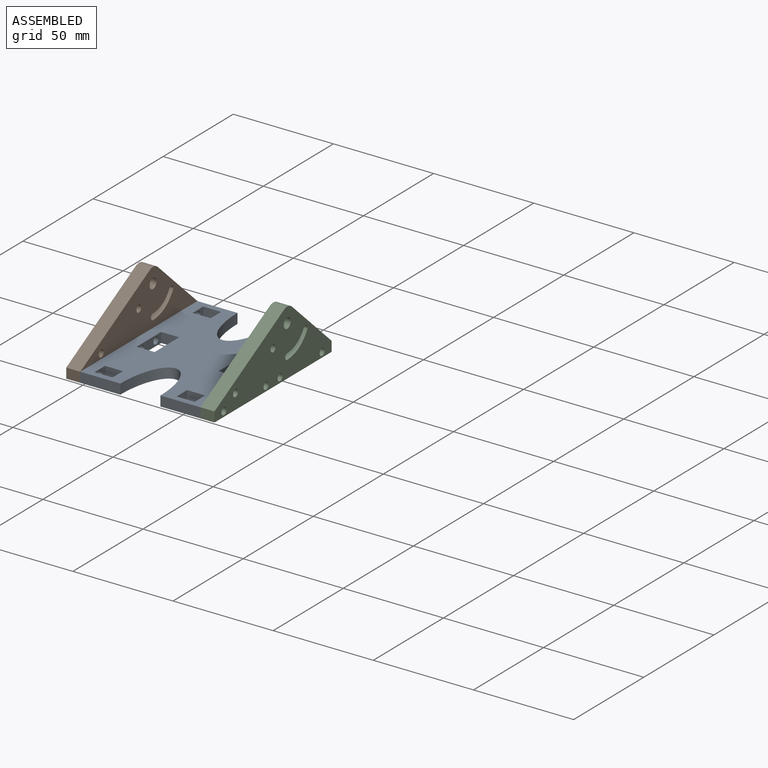
[diagram: assembled view]
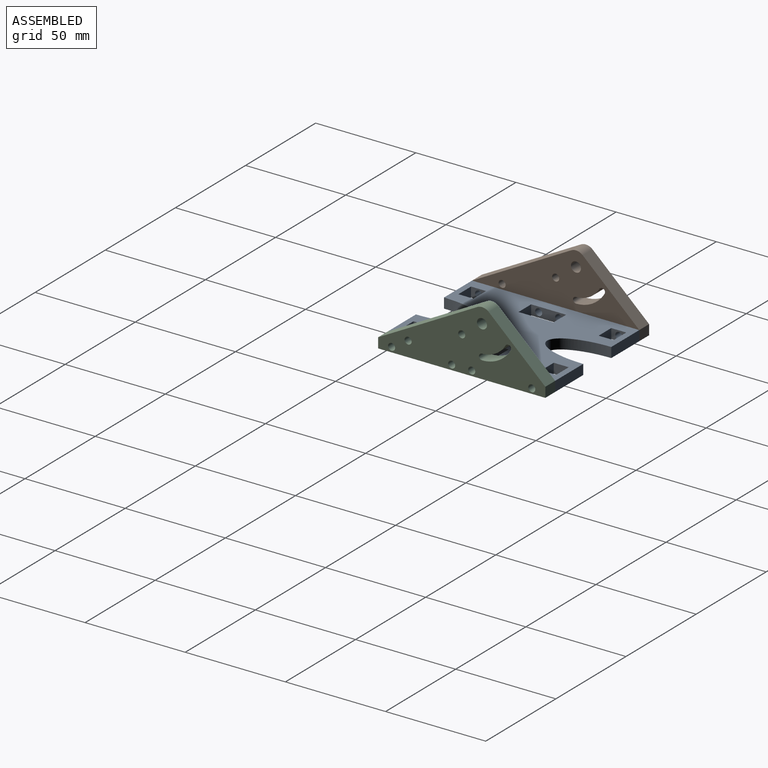
[diagram: assembled view, second angle]
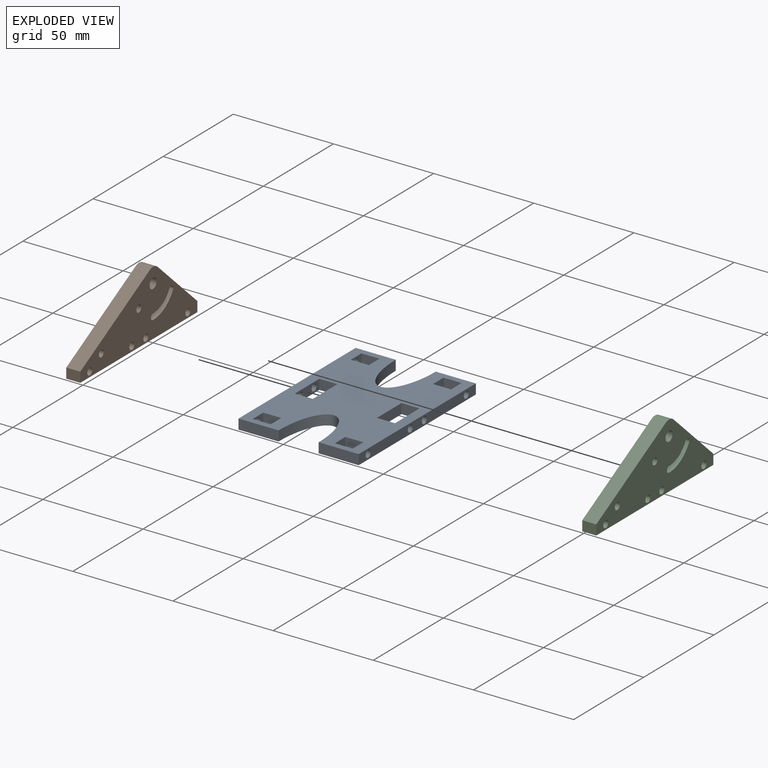
[diagram: exploded view]
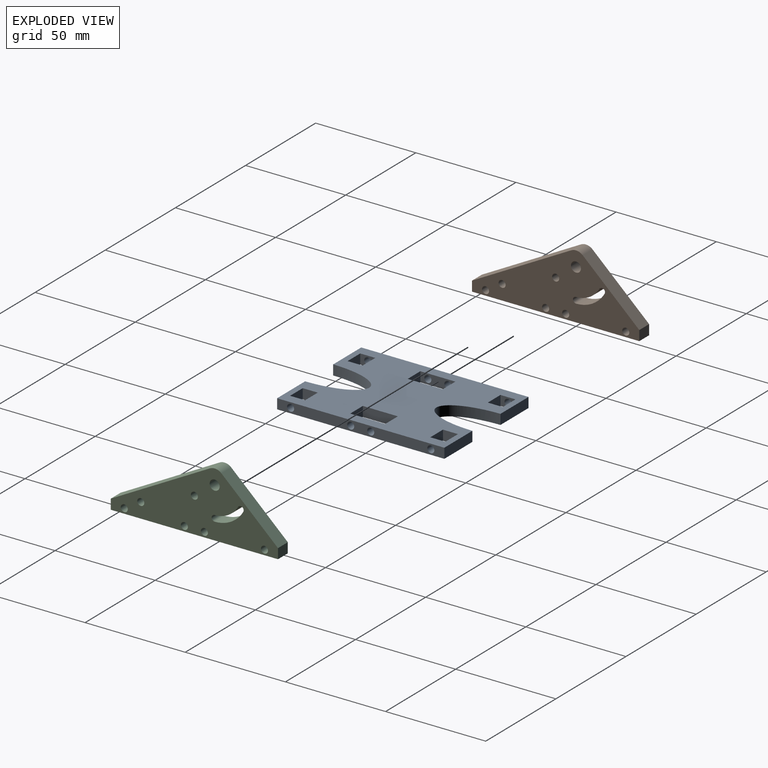
[diagram: exploded view, second angle]
FCSTD DOCUMENT  (FreeCAD 1.0RUnknown)
Label: Wedge-3
License: All rights reserved
LicenseURL: https://en.wikipedia.org/wiki/All_rights_reserved
objects: Sketcher::SketchObject×9, App::Part×6, PartDesign::Body×5, PartDesign::Pad×4, PartDesign::Pocket×4, PartDesign::SubShapeBinder×3, App::Link×3, App::FeaturePython×3, Spreadsheet::Sheet×1, Assembly::JointGroup×1, Assembly::AssemblyObject×1
note: 50 computed .brp shape members not serialized (recipe doc carries the construction recipe); baked Part::Feature solids carry a one-line shape summary decoded from their .brp

FEATURE [Spreadsheet::Sheet] Spreadsheet
  cells = A1='dovetailTopWidth; B1(dovetailTopWidth)==100 mm; A2='dovetailBottomWidth; B2(dovetailBottomWidth)=150; A3='dovetailLength; B3(dovetailLength)==300 mm; A4='dovetailSlotDiameter; B4(dovetailSlotDiameter)==25 mm; A5='dovetailSlotLength; B5(dovetailSlotLength)==75 mm
FEATURE [Sketcher::SketchObject] Sketch
  ArcFitTolerance = 1e-06
  AttachmentSupport = -> [XZ_Plane001]
  FullyConstrained = true
  MakeInternals = false
  MapMode = 5
  Placement = pos=(0,0,0) rot=(1,0,0;1.5708rad)
  expr: Constraints[10] = <<Spreadsheet>>.dovetailTopWidth
  expr: Constraints[11] = <<Spreadsheet>>.dovetailBottomWidth
  sketch-geometry (6):
    g0: LineSegment StartX=-50 StartY=12.5 StartZ=0 EndX=-75 EndY=-12.5 EndZ=0
    g1: LineSegment StartX=-75 StartY=-12.5 StartZ=0 EndX=75 EndY=-12.5 EndZ=0
    g2: LineSegment StartX=75 StartY=-12.5 StartZ=0 EndX=50 EndY=12.5 EndZ=0
    g3: LineSegment StartX=50 StartY=12.5 StartZ=0 EndX=-50 EndY=12.5 EndZ=0
    g4: GeomPoint X=6e-16 Y=12.5 Z=0
    g5: GeomPoint X=6e-16 Y=-12.5 Z=0
  constraints (12):
    c: Coincident(g1,g0)
    c: Horizontal(g1)
    c: Coincident(g2,g1)
    c: Coincident(g3,g2)
    c: Coincident(g3,g0)
    c: Symmetric(g2,g0,g-2)
    c: Angle(g1,g0) = 0.785398
    c: Symmetric(g3,g3,g4)
    c: Symmetric(g1,g1,g5)
    c: Symmetric(g5,g4,g-1)
    c: DistanceX(g3,g3) = 100
    c: DistanceX(g1,g1) = 150
FEATURE [PartDesign::Pad] Pad
  Direction = (0,-1,2e-16)
  Length = 300
  Length2 = 10
  Placement = pos=(0,0,0) rot=(1,0,0;1.5708rad)
  Profile = -> Sketch
  ReferenceAxis = -> Sketch [N_Axis]
  Refine = true
  Suppressed = false
  Type = 0
  expr: Length = <<Spreadsheet>>.dovetailLength
FEATURE [Sketcher::SketchObject] Sketch001
  ArcFitTolerance = 1e-06
  AttachmentSupport = -> [Pad]
  ExternalGeometry = -> [Pad]
  FullyConstrained = false
  MakeInternals = false
  MapMode = 5
  Placement = pos=(2e-16,5.2e-15,12.5) rot=(0,0,1;3.14159rad)
  expr: Constraints[16] = <<Spreadsheet>>.dovetailSlotDiameter
  expr: Constraints[17] = <<Spreadsheet>>.dovetailSlotLength
  sketch-geometry (16):
    g0: ArcOfCircle CenterX=2e-16 CenterY=175 CenterZ=0 NormalX=0 NormalY=0 NormalZ=1 AngleXU=0 Radius=12.5 StartAngle=1.2e-15 EndAngle=3.14159
    g1: ArcOfCircle CenterX=1e-16 CenterY=125 CenterZ=0 NormalX=0 NormalY=0 NormalZ=1 AngleXU=0 Radius=12.5 StartAngle=3.14159 EndAngle=6.28319
    g2: LineSegment StartX=12.5 StartY=175 StartZ=0 EndX=12.5 EndY=125 EndZ=0
    g3: LineSegment StartX=-12.5 StartY=175 StartZ=0 EndX=-12.5 EndY=125 EndZ=0
    g4: LineSegment [constr] StartX=2e-16 StartY=175 StartZ=0 EndX=1e-16 EndY=125 EndZ=0
    g5: GeomPoint [constr] X=2e-16 Y=150 Z=0
    g6: LineSegment [constr] StartX=2e-16 StartY=175 StartZ=0 EndX=2e-16 EndY=187.5 EndZ=0
    g7: LineSegment [constr] StartX=1e-16 StartY=125 StartZ=0 EndX=1e-16 EndY=112.5 EndZ=0
    g8: Circle CenterX=-25.1077 CenterY=263.661 CenterZ=0 NormalX=0 NormalY=0 NormalZ=1 AngleXU=0 Radius=11.8202
    g9: Circle CenterX=25.1077 CenterY=263.661 CenterZ=0 NormalX=0 NormalY=0 NormalZ=1 AngleXU=0 Radius=11.8202
    g10: Circle CenterX=-25.1077 CenterY=36.3387 CenterZ=0 NormalX=0 NormalY=0 NormalZ=1 AngleXU=0 Radius=11.8202
    g11: Circle CenterX=25.1077 CenterY=36.3387 CenterZ=0 NormalX=0 NormalY=0 NormalZ=1 AngleXU=0 Radius=11.8202
    g12: LineSegment [constr] StartX=-25.1077 StartY=263.661 StartZ=0 EndX=25.1077 EndY=263.661 EndZ=0
    g13: LineSegment [constr] StartX=-25.1077 StartY=36.3387 StartZ=0 EndX=25.1077 EndY=36.3387 EndZ=0
    g14: GeomPoint [constr] X=-8e-16 Y=263.661 Z=0
    g15: GeomPoint [constr] X=1.1e-15 Y=36.3387 Z=0
  constraints (31):
    c: Tangent(g0,g2) = 1.5708
    c: Tangent(g0,g3) = -1.5708
    c: Tangent(g1,g2) = 1.5708
    c: Tangent(g1,g3) = -1.5708
    c: Equal(g0,g1)
    c: Vertical(g3)
    c: Coincident(g4,g0)
    c: Coincident(g4,g1)
    c: Symmetric(g4,g4,g5)
    c: Symmetric(g-3,g-4,g5)
    c: Coincident(g6,g0)
    c: PointOnObject(g6,g0)
    c: Vertical(g6)
    c: Coincident(g7,g1)
    c: PointOnObject(g7,g1)
    c: Vertical(g7)
    c: Diameter(g0) = 25
    c: DistanceY(g7,g6) = 75
    c: Equal(g11,g10)
    c: Equal(g10,g9)
    c: Equal(g9,g8)
    c: Horizontal(g10,g11)
    c: Vertical(g10,g8)
    c: Symmetric(g8,g9,g-2)
    c: Coincident(g12,g8)
    c: Coincident(g12,g9)
    c: Coincident(g13,g10)
    c: Coincident(g13,g11)
    c: Symmetric(g12,g12,g14)
    c: Symmetric(g13,g13,g15)
    c: Symmetric(g15,g14,g5)
FEATURE [PartDesign::Pocket] Pocket
  BaseFeature = -> Pad
  Direction = (0,0,-1)
  Length = 5
  Length2 = 5
  Placement = pos=(0,0,0) rot=(1,0,0;1.5708rad)
  Profile = -> Sketch001
  ReferenceAxis = -> Sketch001 [N_Axis]
  Refine = true
  Suppressed = false
  Type = 2
FEATURE [PartDesign::Body] Body
  AllowCompound = false
  Group = -> [Sketch,Pad,Sketch001,Pocket]
  Origin = -> Origin001
  Tip = -> Pocket
FEATURE [App::Part] Part  label="DovetailPlate"
  Group = -> [Body]
  Origin = -> Origin
FEATURE [Sketcher::SketchObject] Sketch002
  ArcFitTolerance = 1e-06
  AttachmentSupport = -> [YZ_Plane003]
  FullyConstrained = true
  MakeInternals = false
  MapMode = 5
  Placement = pos=(0,0,0) rot=(0.57735,0.57735,0.57735;2.0944rad)
  sketch-geometry (28):
    g0: LineSegment StartX=-51.8817 StartY=0 StartZ=0 EndX=31.6183 EndY=0 EndZ=0
    g1: Circle CenterX=0 CenterY=25 CenterZ=0 NormalX=0 NormalY=0 NormalZ=1 AngleXU=0 Radius=2.5
    g2: ArcOfCircle CenterX=0 CenterY=25 CenterZ=0 NormalX=0 NormalY=0 NormalZ=1 AngleXU=0 Radius=16.5 StartAngle=4.71239 EndAngle=5.75959
    g3: ArcOfCircle CenterX=12.9904 CenterY=17.5 CenterZ=0 NormalX=0 NormalY=0 NormalZ=1 AngleXU=0 Radius=1.5 StartAngle=5.75959 EndAngle=8.90118
    g4: ArcOfCircle CenterX=0 CenterY=10 CenterZ=0 NormalX=0 NormalY=0 NormalZ=1 AngleXU=0 Radius=1.5 StartAngle=1.5708 EndAngle=4.71239
    g5: ArcOfCircle CenterX=0 CenterY=25 CenterZ=0 NormalX=0 NormalY=0 NormalZ=1 AngleXU=0 Radius=13.5 StartAngle=4.71239 EndAngle=5.75959
    g6: LineSegment StartX=-51.8817 StartY=0 StartZ=0 EndX=-51.8817 EndY=5 EndZ=0
    g7: LineSegment StartX=31.6183 StartY=0 StartZ=0 EndX=31.6183 EndY=5 EndZ=0
    g8: LineSegment StartX=3.3997 StartY=31.1663 StartZ=0 EndX=31.6183 EndY=5 EndZ=0
    g9: ArcOfCircle CenterX=0 CenterY=27.5 CenterZ=0 NormalX=0 NormalY=0 NormalZ=1 AngleXU=0 Radius=5 StartAngle=0.823116 EndAngle=2.06853
    g10: Circle CenterX=-36.8817 CenterY=7.5 CenterZ=0 NormalX=0 NormalY=0 NormalZ=1 AngleXU=0 Radius=1.75
    g11: Circle CenterX=-45.1317 CenterY=2.5 CenterZ=0 NormalX=0 NormalY=0 NormalZ=1 AngleXU=0 Radius=1.75
    g12: Circle CenterX=-15.1317 CenterY=2.5 CenterZ=0 NormalX=0 NormalY=0 NormalZ=1 AngleXU=0 Radius=1.75
    g13: Circle CenterX=24.8683 CenterY=2.5 CenterZ=0 NormalX=0 NormalY=0 NormalZ=1 AngleXU=0 Radius=1.75
    g14: Circle CenterX=-5.13173 CenterY=2.5 CenterZ=0 NormalX=0 NormalY=0 NormalZ=1 AngleXU=0 Radius=1.75
    g15: LineSegment [constr] StartX=-45.1317 StartY=2.5 StartZ=0 EndX=-51.8817 EndY=2.5 EndZ=0
    g16: LineSegment [constr] StartX=24.8683 StartY=2.5 StartZ=0 EndX=31.6183 EndY=2.5 EndZ=0
    g17: LineSegment [constr] StartX=-45.1317 StartY=2.5 StartZ=0 EndX=-15.1317 EndY=2.5 EndZ=0
    g18: LineSegment [constr] StartX=-5.13173 StartY=2.5 StartZ=0 EndX=24.8683 EndY=2.5 EndZ=0
    g19: LineSegment StartX=-51.8817 StartY=5 StartZ=0 EndX=-2.38716 EndY=31.8933 EndZ=0
    g20: LineSegment [constr] StartX=0 StartY=27.5 StartZ=0 EndX=0 EndY=32.5 EndZ=0
    g21: LineSegment [constr] StartX=0 StartY=25 StartZ=0 EndX=0 EndY=10 EndZ=0
    g22: LineSegment [constr] StartX=12.9904 StartY=17.5 StartZ=0 EndX=-8e-16 EndY=25 EndZ=0
    g23: LineSegment [constr] StartX=12.9904 StartY=17.5 StartZ=0 EndX=14.0103 EndY=18.5999 EndZ=0
    g24: Circle CenterX=-10.1317 CenterY=17.5 CenterZ=0 NormalX=0 NormalY=0 NormalZ=1 AngleXU=0 Radius=1.75
    g25: LineSegment [constr] StartX=-15.1317 StartY=2.5 StartZ=0 EndX=-5.13173 EndY=2.5 EndZ=0
    g26: LineSegment [constr] StartX=-10.1317 StartY=17.5 StartZ=0 EndX=-10.1317 EndY=2.5 EndZ=0
    g27: LineSegment [constr] StartX=-36.8817 StartY=7.5 StartZ=0 EndX=-36.8817 EndY=2.5 EndZ=0
  constraints (74):
    c: PointOnObject(g0,g-1)
    c: PointOnObject(g0,g-1)
    c: PointOnObject(g1,g-2)
    c: Coincident(g2,g5)
    c: Tangent(g5,g4) = 1.5708
    c: Tangent(g5,g3) = 1.5708
    c: Tangent(g2,g4) = -1.5708
    c: Tangent(g2,g3) = -1.5708
    c: Coincident(g2,g1)
    c: PointOnObject(g4,g-2)
    c: DistanceY(g4) = 10
    c: Coincident(g6,g0)
    c: Vertical(g6)
    c: Coincident(g7,g0)
    c: Vertical(g7)
    c: Coincident(g8,g7)
    c: Equal(g6,g7)
    c: PointOnObject(g9,g-2)
    c: Tangent(g9,g8) = 1.5708
    c: Coincident(g15,g11)
    c: Symmetric(g6,g6,g15)
    c: Horizontal(g15)
    c: Coincident(g16,g13)
    c: Symmetric(g7,g7,g16)
    c: Horizontal(g16)
    c: Equal(g15,g16)
    c: Coincident(g17,g11)
    c: Coincident(g17,g12)
    c: Horizontal(g17)
    c: Coincident(g18,g14)
    c: Coincident(g18,g13)
    c: Horizontal(g18)
    c: Equal(g18,g17)
    c: Diameter(g1) = 5
    c: Equal(g11,g12)
    c: Equal(g12,g14)
    c: Equal(g14,g13)
    c: Diameter(g11) = 3.5
    c: Distance(g11,g6) = 5
    c: DistanceX(g17,g17) = 30
    c: Distance(g6,g6) = 5
    c: Diameter(g3) = 3
    c: Tangent(g19,g9) = 1.5708
    c: Coincident(g19,g6)
    c: Equal(g12,g10)
    c: PointOnObject(g20,g1)
    c: PointOnObject(g20,g9)
    c: Vertical(g20)
    c: DistanceY(g20,g20) = 5
    c: DistanceX(g12,g14) = 10
    c: Coincident(g21,g1)
    c: Coincident(g21,g4)
    c: Coincident(g22,g3)
    c: Coincident(g22,g1)
    c: Angle(g21,g22) = 1.0472
    c: DistanceY(g21,g21) = 15
    c: Coincident(g23,g3)
    c: PointOnObject(g23,g3)
    c: Perpendicular(g8,g23)
    c: Distance(g23,g8) = 2
    c: Coincident(g9,g20)
    c: Equal(g24,g12)
    c: Coincident(g25,g12)
    c: Coincident(g25,g14)
    c: Coincident(g26,g24)
    c: Symmetric(g25,g25,g26)
    c: Vertical(g26)
    c: DistanceY(g26,g26) = 15
    c: Coincident(g27,g10)
    c: PointOnObject(g27,g17)
    c: Vertical(g27)
    c: Distance(g27,g27) = 5
    c: Distance(g6,g27) = 15
    c: Distance(g1,g4) = 15
FEATURE [PartDesign::Pad] Pad001
  Direction = (1,0,0)
  Length = 7
  Length2 = 10
  Placement = pos=(0,0,0) rot=(1,1,1;2.0944rad)
  Profile = -> Sketch002
  ReferenceAxis = -> Sketch002 [N_Axis]
  Refine = true
  Suppressed = false
  Type = 0
FEATURE [PartDesign::Body] Body001
  AllowCompound = false
  Group = -> [Sketch002,Pad001]
  Origin = -> Origin003
  Tip = -> Pad001
FEATURE [App::Part] Part001  label="Wedge Side"
  Group = -> [Body001]
  Origin = -> Origin002
FEATURE [PartDesign::SubShapeBinder] Binder
  BindCopyOnChange = 0
  BindMode = 0
  ClaimChildren = false
  Context = -> Part002 [Body002.Binder.]
  Fuse = false
  MakeFace = true
  OffsetFill = false
  OffsetIntersection = false
  OffsetJoinType = 0
  OffsetOpenResult = false
  PartialLoad = false
  Refine = true
  Relative = true
  Support = -> [Part001[Body001.Pad001.Face19]]
  _Version = 2
FEATURE [Sketcher::SketchObject] Sketch003
  ArcFitTolerance = 1e-06
  AttachmentSupport = -> [YZ_Plane005]
  ExternalGeometry = -> [Binder]
  FullyConstrained = true
  MakeInternals = false
  MapMode = 5
  Placement = pos=(0,0,0) rot=(0.57735,0.57735,0.57735;2.0944rad)
  sketch-geometry (4):
    g0: LineSegment StartX=-51.8817 StartY=5 StartZ=0 EndX=-51.8817 EndY=0 EndZ=0
    g1: LineSegment StartX=-51.8817 StartY=0 StartZ=0 EndX=31.6183 EndY=0 EndZ=0
    g2: LineSegment StartX=31.6183 StartY=0 StartZ=0 EndX=31.6183 EndY=5 EndZ=0
    g3: LineSegment StartX=31.6183 StartY=5 StartZ=0 EndX=-51.8817 EndY=5 EndZ=0
  constraints (10):
    c: Coincident(g0,g1)
    c: Coincident(g1,g2)
    c: Coincident(g2,g3)
    c: Coincident(g3,g0)
    c: Vertical(g0)
    c: Vertical(g2)
    c: Horizontal(g1)
    c: Horizontal(g3)
    c: Coincident(g0,g-3)
    c: Coincident(g1,g-4)
FEATURE [PartDesign::Pad] Pad002
  Direction = (1,0,0)
  Length = 60
  Length2 = 10
  Placement = pos=(0,0,0) rot=(1,1,1;2.0944rad)
  Profile = -> Sketch003
  ReferenceAxis = -> Sketch003 [N_Axis]
  Refine = true
  Suppressed = false
  Type = 0
FEATURE [Sketcher::SketchObject] Sketch004
  ArcFitTolerance = 1e-06
  AttachmentSupport = -> [Pad002]
  ExternalGeometry = -> [Binder]
  FullyConstrained = true
  MakeInternals = false
  MapMode = 5
  Placement = pos=(1.3e-15,0,0) rot=(0.57735,0.57735,-0.57735;4.18879rad)
  sketch-geometry (4):
    g0: Circle CenterX=24.8683 CenterY=-2.5 CenterZ=0 NormalX=0 NormalY=0 NormalZ=1 AngleXU=0 Radius=1.75
    g1: Circle CenterX=-5.13173 CenterY=-2.5 CenterZ=0 NormalX=0 NormalY=0 NormalZ=1 AngleXU=0 Radius=1.75
    g2: Circle CenterX=-15.1317 CenterY=-2.5 CenterZ=0 NormalX=0 NormalY=0 NormalZ=1 AngleXU=0 Radius=1.75
    g3: Circle CenterX=-45.1317 CenterY=-2.5 CenterZ=0 NormalX=0 NormalY=0 NormalZ=1 AngleXU=0 Radius=1.75
  constraints (8):
    c: Coincident(g0,g-3)
    c: Equal(g0,g-3)
    c: Coincident(g1,g-4)
    c: Equal(g1,g-4)
    c: Coincident(g2,g-5)
    c: Equal(g2,g-5)
    c: Coincident(g3,g-6)
    c: Equal(g3,g-6)
FEATURE [Sketcher::SketchObject] Sketch006
  ArcFitTolerance = 1e-06
  AttachmentSupport = -> [Pad002]
  ExternalGeometry = -> [Binder]
  FullyConstrained = true
  MakeInternals = false
  MapMode = 5
  Placement = pos=(60,-7.8e-15,3.9e-15) rot=(0.57735,0.57735,0.57735;2.0944rad)
  sketch-geometry (4):
    g0: Circle CenterX=-45.1317 CenterY=2.5 CenterZ=0 NormalX=0 NormalY=0 NormalZ=1 AngleXU=0 Radius=1.75
    g1: Circle CenterX=-15.1317 CenterY=2.5 CenterZ=0 NormalX=0 NormalY=0 NormalZ=1 AngleXU=0 Radius=1.75
    g2: Circle CenterX=-5.13173 CenterY=2.5 CenterZ=0 NormalX=0 NormalY=0 NormalZ=1 AngleXU=0 Radius=1.75
    g3: Circle CenterX=24.8683 CenterY=2.5 CenterZ=0 NormalX=0 NormalY=0 NormalZ=1 AngleXU=0 Radius=1.75
  constraints (8):
    c: Coincident(g0,g-3)
    c: Equal(g0,g-3)
    c: Coincident(g1,g-4)
    c: Equal(g1,g-4)
    c: Coincident(g2,g-5)
    c: Equal(g2,g-5)
    c: Coincident(g3,g-6)
    c: Equal(g3,g-6)
FEATURE [Sketcher::SketchObject] Sketch005
  ArcFitTolerance = 1e-06
  AttachmentSupport = -> [Pad002]
  ExternalGeometry = -> [Sketch004,Sketch006,Pad002]
  FullyConstrained = true
  MakeInternals = false
  MapMode = 5
  Placement = pos=(-3e-16,1.2e-15,5) rot=(0,0,-1;1.5708rad)
  sketch-geometry (87):
    g0: LineSegment [constr] StartX=-26.6183 StartY=7 StartZ=0 EndX=-23.1183 EndY=7 EndZ=0
    g1: LineSegment [constr] StartX=-23.1183 StartY=7 StartZ=0 EndX=-23.1183 EndY=12 EndZ=0
    g2: LineSegment [constr] StartX=-23.1183 StartY=12 StartZ=0 EndX=-26.6183 EndY=12 EndZ=0
    g3: LineSegment [constr] StartX=-26.6183 StartY=12 StartZ=0 EndX=-26.6183 EndY=7 EndZ=0
    g4: LineSegment [constr] StartX=3.38173 StartY=7 StartZ=0 EndX=16.8817 EndY=7 EndZ=0
    g5: LineSegment [constr] StartX=16.8817 StartY=7 StartZ=0 EndX=16.8817 EndY=12 EndZ=0
    g6: LineSegment [constr] StartX=16.8817 StartY=12 StartZ=0 EndX=3.38173 EndY=12 EndZ=0
    g7: LineSegment [constr] StartX=3.38173 StartY=12 StartZ=0 EndX=3.38173 EndY=7 EndZ=0
    g8: LineSegment [constr] StartX=43.3817 StartY=7 StartZ=0 EndX=46.8817 EndY=7 EndZ=0
    g9: LineSegment [constr] StartX=46.8817 StartY=7 StartZ=0 EndX=46.8817 EndY=12 EndZ=0
    g10: LineSegment [constr] StartX=46.8817 StartY=12 StartZ=0 EndX=43.3817 EndY=12 EndZ=0
    g11: LineSegment [constr] StartX=43.3817 StartY=12 StartZ=0 EndX=43.3817 EndY=7 EndZ=0
    g12: LineSegment [constr] StartX=-31.6183 StartY=30 StartZ=0 EndX=51.8817 EndY=30 EndZ=0
    g13: LineSegment [constr] StartX=-26.6183 StartY=53 StartZ=0 EndX=-23.1183 EndY=53 EndZ=0
    g14: LineSegment [constr] StartX=-23.1183 StartY=53 StartZ=0 EndX=-23.1183 EndY=48 EndZ=0
    g15: LineSegment [constr] StartX=-23.1183 StartY=48 StartZ=0 EndX=-26.6183 EndY=48 EndZ=0
    g16: LineSegment [constr] StartX=-26.6183 StartY=48 StartZ=0 EndX=-26.6183 EndY=53 EndZ=0
    g17: LineSegment [constr] StartX=3.38173 StartY=53 StartZ=0 EndX=16.8817 EndY=53 EndZ=0
    g18: LineSegment [constr] StartX=16.8817 StartY=53 StartZ=0 EndX=16.8817 EndY=48 EndZ=0
    g19: LineSegment [constr] StartX=16.8817 StartY=48 StartZ=0 EndX=3.38173 EndY=48 EndZ=0
    g20: LineSegment [constr] StartX=3.38173 StartY=48 StartZ=0 EndX=3.38173 EndY=53 EndZ=0
    g21: LineSegment [constr] StartX=43.3817 StartY=53 StartZ=0 EndX=46.8817 EndY=53 EndZ=0
    g22: LineSegment [constr] StartX=46.8817 StartY=53 StartZ=0 EndX=46.8817 EndY=48 EndZ=0
    g23: LineSegment [constr] StartX=46.8817 StartY=48 StartZ=0 EndX=43.3817 EndY=48 EndZ=0
    g24: LineSegment [constr] StartX=43.3817 StartY=48 StartZ=0 EndX=43.3817 EndY=53 EndZ=0
    g25: LineSegment [constr] StartX=-23.1183 StartY=48 StartZ=0 EndX=-23.1183 EndY=46 EndZ=0
    g26: LineSegment [constr] StartX=-23.1183 StartY=53 StartZ=0 EndX=-21.1183 EndY=53 EndZ=0
    g27: LineSegment [constr] StartX=-26.6183 StartY=48 StartZ=0 EndX=-28.6183 EndY=48 EndZ=0
    g28: LineSegment [constr] StartX=-26.6183 StartY=53 StartZ=0 EndX=-26.6183 EndY=55 EndZ=0
    g29: LineSegment StartX=-28.6183 StartY=55 StartZ=0 EndX=-21.1183 EndY=55 EndZ=0
    g30: LineSegment StartX=-21.1183 StartY=55 StartZ=0 EndX=-21.1183 EndY=46 EndZ=0
    g31: LineSegment StartX=-28.6183 StartY=55 StartZ=0 EndX=-28.6183 EndY=46 EndZ=0
    g32: LineSegment StartX=-28.6183 StartY=46 StartZ=0 EndX=-21.1183 EndY=46 EndZ=0
    g33: LineSegment [constr] StartX=3.38173 StartY=53 StartZ=0 EndX=3.38173 EndY=55 EndZ=0
    g34: LineSegment [constr] StartX=16.8817 StartY=53 StartZ=0 EndX=18.8817 EndY=53 EndZ=0
    g35: LineSegment [constr] StartX=16.8817 StartY=48 StartZ=0 EndX=16.8817 EndY=46 EndZ=0
    g36: LineSegment [constr] StartX=3.38173 StartY=48 StartZ=0 EndX=1.38173 EndY=48 EndZ=0
    g37: LineSegment StartX=1.38173 StartY=55 StartZ=0 EndX=18.8817 EndY=55 EndZ=0
    g38: LineSegment StartX=1.38173 StartY=55 StartZ=0 EndX=1.38173 EndY=46 EndZ=0
    g39: LineSegment StartX=1.38173 StartY=46 StartZ=0 EndX=18.8817 EndY=46 EndZ=0
    g40: LineSegment StartX=18.8817 StartY=55 StartZ=0 EndX=18.8817 EndY=46 EndZ=0
    g41: LineSegment [constr] StartX=46.8817 StartY=53 StartZ=0 EndX=48.8817 EndY=53 EndZ=0
    g42: LineSegment [constr] StartX=46.8817 StartY=48 StartZ=0 EndX=46.8817 EndY=46 EndZ=0
    g43: LineSegment [constr] StartX=43.3817 StartY=48 StartZ=0 EndX=41.3817 EndY=48 EndZ=0
    g44: LineSegment [constr] StartX=43.3817 StartY=53 StartZ=0 EndX=43.3817 EndY=55 EndZ=0
    g45: LineSegment StartX=41.3817 StartY=55 StartZ=0 EndX=48.8817 EndY=55 EndZ=0
    g46: LineSegment StartX=41.3817 StartY=55 StartZ=0 EndX=41.3817 EndY=46 EndZ=0
    g47: LineSegment StartX=41.3817 StartY=46 StartZ=0 EndX=48.8817 EndY=46 EndZ=0
    g48: LineSegment StartX=48.8817 StartY=55 StartZ=0 EndX=48.8817 EndY=46 EndZ=0
    g49: LineSegment [constr] StartX=-23.1183 StartY=12 StartZ=0 EndX=-21.1183 EndY=12 EndZ=0
    g50: LineSegment [constr] StartX=-23.1183 StartY=7 StartZ=0 EndX=-23.1183 EndY=5 EndZ=0
    g51: LineSegment [constr] StartX=-26.6183 StartY=7 StartZ=0 EndX=-28.6183 EndY=7 EndZ=0
    g52: LineSegment [constr] StartX=-26.6183 StartY=12 StartZ=0 EndX=-26.6183 EndY=14 EndZ=0
    g53: LineSegment StartX=-28.6183 StartY=14 StartZ=0 EndX=-21.1183 EndY=14 EndZ=0
    g54: LineSegment StartX=-21.1183 StartY=14 StartZ=0 EndX=-21.1183 EndY=5 EndZ=0
    g55: LineSegment StartX=-21.1183 StartY=5 StartZ=0 EndX=-28.6183 EndY=5 EndZ=0
    g56: LineSegment StartX=-28.6183 StartY=14 StartZ=0 EndX=-28.6183 EndY=5 EndZ=0
    g57: LineSegment [constr] StartX=3.38173 StartY=12 StartZ=0 EndX=3.38173 EndY=14 EndZ=0
    g58: LineSegment [constr] StartX=16.8817 StartY=12 StartZ=0 EndX=18.8817 EndY=12 EndZ=0
    g59: LineSegment [constr] StartX=16.8817 StartY=7 StartZ=0 EndX=16.8817 EndY=5 EndZ=0
    g60: LineSegment [constr] StartX=3.38173 StartY=7 StartZ=0 EndX=1.38173 EndY=7 EndZ=0
    g61: LineSegment StartX=1.38173 StartY=14 StartZ=0 EndX=18.8817 EndY=14 EndZ=0
    g62: LineSegment StartX=18.8817 StartY=14 StartZ=0 EndX=18.8817 EndY=5 EndZ=0
    g63: LineSegment StartX=1.38173 StartY=14 StartZ=0 EndX=1.38173 EndY=5 EndZ=0
    g64: LineSegment StartX=1.38173 StartY=5 StartZ=0 EndX=18.8817 EndY=5 EndZ=0
    g65: LineSegment [constr] StartX=43.3817 StartY=12 StartZ=0 EndX=43.3817 EndY=14 EndZ=0
    g66: LineSegment [constr] StartX=46.8817 StartY=12 StartZ=0 EndX=48.8817 EndY=12 EndZ=0
    g67: LineSegment [constr] StartX=46.8817 StartY=7 StartZ=0 EndX=46.8817 EndY=5 EndZ=0
    g68: LineSegment [constr] StartX=43.3817 StartY=7 StartZ=0 EndX=41.3817 EndY=7 EndZ=0
    g69: LineSegment StartX=41.3817 StartY=14 StartZ=0 EndX=48.8817 EndY=14 EndZ=0
    g70: LineSegment StartX=48.8817 StartY=14 StartZ=0 EndX=48.8817 EndY=5 EndZ=0
    g71: LineSegment StartX=48.8817 StartY=5 StartZ=0 EndX=41.3817 EndY=5 EndZ=0
    g72: LineSegment StartX=41.3817 StartY=14 StartZ=0 EndX=41.3817 EndY=5 EndZ=0
    g73: ArcOfEllipse CenterX=-31.6183 CenterY=30 CenterZ=0 NormalX=0 NormalY=0 NormalZ=1 MajorRadius=25 MinorRadius=10 AngleXU=-2e-16 StartAngle=4.71239 EndAngle=7.85398
    g74: LineSegment [constr] StartX=-6.61827 StartY=30 StartZ=0 EndX=-56.6183 EndY=30 EndZ=0
    g75: LineSegment [constr] StartX=-31.6183 StartY=40 StartZ=0 EndX=-31.6183 EndY=20 EndZ=0
    g76: GeomPoint [constr] X=-8.7054 Y=30 Z=0
    g77: GeomPoint [constr] X=-54.5312 Y=30 Z=0
    g78: LineSegment StartX=-31.6183 StartY=40 StartZ=0 EndX=-31.6183 EndY=20 EndZ=0
    g79: GeomPoint [constr] X=10.1317 Y=30 Z=0
    g80: LineSegment [constr] StartX=10.1317 StartY=60 StartZ=0 EndX=10.1317 EndY=0 EndZ=0
    g81: ArcOfEllipse CenterX=51.8817 CenterY=30 CenterZ=0 NormalX=0 NormalY=0 NormalZ=1 MajorRadius=25 MinorRadius=10 AngleXU=-3.14159 StartAngle=4.71239 EndAngle=7.85398
    g82: LineSegment [constr] StartX=51.8817 StartY=40 StartZ=0 EndX=51.8817 EndY=20 EndZ=0
    g83: GeomPoint [constr] X=28.9688 Y=30 Z=0
    g84: LineSegment StartX=51.8817 StartY=40 StartZ=0 EndX=51.8817 EndY=20 EndZ=0
    g85: LineSegment [constr] StartX=26.8817 StartY=30 StartZ=0 EndX=76.8817 EndY=30 EndZ=0
    g86: GeomPoint [constr] X=74.7946 Y=30 Z=0
  constraints (246):
    c: Coincident(g0,g1)
    c: Coincident(g1,g2)
    c: Coincident(g2,g3)
    c: Coincident(g3,g0)
    c: Horizontal(g0)
    c: Horizontal(g2)
    c: Vertical(g1)
    c: Vertical(g3)
    c: Coincident(g4,g5)
    c: Coincident(g5,g6)
    c: Coincident(g6,g7)
    c: Coincident(g7,g4)
    c: Horizontal(g4)
    c: Horizontal(g6)
    c: Vertical(g5)
    c: Vertical(g7)
    c: Coincident(g8,g9)
    c: Coincident(g9,g10)
    c: Coincident(g10,g11)
    c: Coincident(g11,g8)
    c: Horizontal(g8)
    c: Horizontal(g10)
    c: Vertical(g9)
    c: Vertical(g11)
    c: PointOnObject(g12,g-11)
    c: PointOnObject(g12,g-12)
    c: Symmetric(g-8,g-4,g12)
    c: Vertical(g0,g-3)
    c: Vertical(g0,g-3)
    c: Vertical(g4,g-4)
    c: Vertical(g4,g-5)
    c: Vertical(g8,g-6)
    c: Vertical(g8,g-6)
    c: Horizontal(g8,g4)
    c: Horizontal(g4,g0)
    c: Horizontal(g1,g6)
    c: Horizontal(g6,g10)
    c: Distance(g-1,g4) = 7
    c: Distance(g5,g5) = 5
    c: Coincident(g13,g14)
    c: Coincident(g14,g15)
    c: Coincident(g15,g16)
    c: Coincident(g16,g13)
    c: Coincident(g17,g18)
    c: Coincident(g18,g19)
    c: Coincident(g19,g20)
    c: Coincident(g20,g17)
    c: Coincident(g21,g22)
    c: Coincident(g22,g23)
    c: Coincident(g23,g24)
    c: Coincident(g24,g21)
    c: Distance(g18,g18) = 5
    c: Equal(g13,g-7)
    c: Vertical(g16)
    c: Vertical(g14)
    c: Vertical(g20)
    c: Vertical(g18)
    c: Vertical(g24)
    c: Vertical(g22)
    c: Horizontal(g15)
    c: Horizontal(g13)
    c: Horizontal(g19)
    c: Horizontal(g17)
    c: Horizontal(g23)
    c: Horizontal(g21)
    c: Vertical(g13,g-7)
    c: Vertical(g17,g-8)
    c: Vertical(g17,g-9)
    c: Vertical(g21,g-10)
    c: Vertical(g21,g-10)
    c: Horizontal(g13,g17)
    c: Horizontal(g17,g21)
    c: Horizontal(g23,g18)
    c: Horizontal(g18,g14)
    c: DistanceY(g17,g-9) = 7
    c: Coincident(g25,g14)
    c: Vertical(g25)
    c: Coincident(g26,g13)
    c: Horizontal(g26)
    c: Coincident(g27,g15)
    c: Horizontal(g27)
    c: Coincident(g28,g13)
    c: Vertical(g28)
    c: Equal(g28,g26)
    c: Equal(g26,g25)
    c: Equal(g25,g27)
    c: Horizontal(g29)
    c: PointOnObject(g28,g29)
    c: Coincident(g30,g29)
    c: Vertical(g30)
    c: PointOnObject(g26,g30)
    c: Coincident(g31,g29)
    c: Vertical(g31)
    c: PointOnObject(g27,g31)
    c: Coincident(g32,g31)
    c: Coincident(g32,g30)
    c: PointOnObject(g25,g32)
    c: Horizontal(g32)
    c: DistanceY(g28,g28) = 2
    c: Coincident(g33,g17)
    c: Vertical(g33)
    c: Coincident(g34,g17)
    c: Horizontal(g34)
    c: Coincident(g35,g18)
    c: Vertical(g35)
    c: Coincident(g36,g19)
    c: Horizontal(g36)
    c: Equal(g36,g33)
    c: Equal(g33,g34)
    c: Equal(g34,g35)
    c: Equal(g33,g28)
    c: Horizontal(g37)
    c: PointOnObject(g33,g37)
    c: Coincident(g38,g37)
    c: Vertical(g38)
    c: PointOnObject(g36,g38)
    c: Coincident(g39,g38)
    c: Horizontal(g39)
    c: PointOnObject(g35,g39)
    c: Coincident(g40,g37)
    c: Coincident(g40,g39)
    c: PointOnObject(g34,g40)
    c: Vertical(g40)
    c: Coincident(g41,g21)
    c: Horizontal(g41)
    c: Coincident(g42,g22)
    c: Vertical(g42)
    c: Coincident(g43,g23)
    c: Horizontal(g43)
    c: Coincident(g44,g21)
    c: Vertical(g44)
    c: Equal(g44,g41)
    c: Equal(g41,g42)
    c: Equal(g42,g43)
    c: Horizontal(g45)
    c: PointOnObject(g44,g45)
    c: Coincident(g46,g45)
    c: Vertical(g46)
    c: PointOnObject(g43,g46)
    c: Coincident(g47,g46)
    c: Horizontal(g47)
    c: PointOnObject(g42,g47)
    c: Coincident(g48,g45)
    c: Coincident(g48,g47)
    c: Vertical(g48)
    c: PointOnObject(g41,g48)
    c: Equal(g44,g34)
    c: Coincident(g49,g1)
    c: Horizontal(g49)
    c: Coincident(g50,g0)
    c: Vertical(g50)
    c: Coincident(g51,g0)
    c: Horizontal(g51)
    c: Coincident(g52,g2)
    c: Vertical(g52)
    c: Equal(g52,g49)
    c: Equal(g49,g50)
    c: Equal(g50,g51)
    c: Horizontal(g53)
    c: PointOnObject(g52,g53)
    c: Coincident(g54,g53)
    c: Vertical(g54)
    c: PointOnObject(g49,g54)
    c: Coincident(g55,g54)
    c: Horizontal(g55)
    c: PointOnObject(g50,g55)
    c: Coincident(g56,g53)
    c: Coincident(g56,g55)
    c: Vertical(g56)
    c: PointOnObject(g51,g56)
    c: Equal(g52,g25)
    c: Coincident(g57,g6)
    c: Vertical(g57)
    c: Coincident(g58,g5)
    c: Horizontal(g58)
    c: Coincident(g59,g4)
    c: Vertical(g59)
    c: Coincident(g60,g4)
    c: Horizontal(g60)
    c: Equal(g60,g57)
    c: Equal(g57,g58)
    c: Equal(g58,g59)
    c: Horizontal(g61)
    c: PointOnObject(g57,g61)
    c: Coincident(g62,g61)
    c: Vertical(g62)
    c: PointOnObject(g58,g62)
    c: Coincident(g63,g61)
    c: Vertical(g63)
    c: PointOnObject(g60,g63)
    c: Coincident(g64,g63)
    c: Coincident(g64,g62)
    c: Horizontal(g64)
    c: PointOnObject(g59,g64)
    c: Equal(g57,g52)
    c: Coincident(g65,g10)
    c: Vertical(g65)
    c: Coincident(g66,g9)
    c: Horizontal(g66)
    c: Coincident(g67,g8)
    c: Vertical(g67)
    c: Coincident(g68,g8)
    c: Horizontal(g68)
    c: Horizontal(g69)
    c: PointOnObject(g65,g69)
    c: Coincident(g70,g69)
    c: Vertical(g70)
    c: PointOnObject(g66,g70)
    c: Coincident(g71,g70)
    c: Horizontal(g71)
    c: PointOnObject(g67,g71)
    c: Coincident(g72,g69)
    c: Coincident(g72,g71)
    c: Vertical(g72)
    c: PointOnObject(g68,g72)
    c: Equal(g68,g65)
    c: Equal(g65,g66)
    c: Equal(g66,g67)
    c: Equal(g65,g58)
    c: InternalAlignment(g74-g77 -> g73) x4
    c: Coincident(g73,g12)
    c: Vertical(g75)
    c: Coincident(g78,g73)
    c: Coincident(g78,g73)
    c: Symmetric(g12,g12,g79)
    c: PointOnObject(g80,g-1)
    c: Vertical(g80)
    c: PointOnObject(g79,g80)
    c: Horizontal(g80,g-8)
    c: Distance(g78,g78) = 20
    c: DistanceX(g74,g74) = 50
    c: Vertical(g78)
    c: PointOnObject(g73,g-11)
    c: InternalAlignment(g85,g81)
    c: InternalAlignment(g82,g81)
    c: InternalAlignment(g83,g81)
    c: InternalAlignment(g86,g81)
    c: Vertical(g82)
    c: Coincident(g84,g81)
    c: Coincident(g84,g81)
    c: Distance(g84,g84) = 20
    c: Vertical(g84)
    c: PointOnObject(g81,g-12)
    c: Coincident(g81,g12)
    c: DistanceX(g85,g85) = 50
    c: Distance(g-8,g37) = 5
FEATURE [PartDesign::Pocket] Pocket001
  BaseFeature = -> Pad002
  Direction = (0,0,-1)
  Length = 5
  Length2 = 5
  Placement = pos=(0,0,0) rot=(1,1,1;2.0944rad)
  Profile = -> Sketch005
  ReferenceAxis = -> Sketch005 [N_Axis]
  Refine = true
  Suppressed = false
  Type = 2
FEATURE [PartDesign::Pocket] Pocket002
  BaseFeature = -> Pocket001
  Direction = (1,0,0)
  Length = 5
  Length2 = 5
  Placement = pos=(0,0,0) rot=(1,1,1;2.0944rad)
  Profile = -> Sketch004
  ReferenceAxis = -> Sketch004 [N_Axis]
  Refine = true
  Suppressed = false
  Type = 2
FEATURE [PartDesign::Pocket] Pocket003
  BaseFeature = -> Pocket002
  Direction = (-1,0,0)
  Length = 5
  Length2 = 5
  Placement = pos=(0,0,0) rot=(1,1,1;2.0944rad)
  Profile = -> Sketch006
  ReferenceAxis = -> Sketch006 [N_Axis]
  Refine = true
  Suppressed = false
  Type = 2
FEATURE [PartDesign::Body] Body002
  AllowCompound = false
  Group = -> [Binder,Sketch003,Pad002,Sketch004,Sketch005,Sketch006,Pocket001,Pocket002,Pocket003]
  Origin = -> Origin005
  Tip = -> Pocket003
FEATURE [App::Part] Part002  label="Wedge Bottom"
  Group = -> [Body002]
  Origin = -> Origin004
FEATURE [App::Link] Wedge_Bottom  label="Wedge Bottom001"
  LinkedObject = -> Part002
FEATURE [App::FeaturePython] GroundedJoint  # Assembly grounded joint (typed FeaturePython)
  ObjectToGround = -> Wedge_Bottom
FEATURE [App::Link] Wedge_Side  label="Wedge Side001"
  LinkPlacement = pos=(-7,-4.41e-14,3.82e-14) rot=(0,0,1;0rad)
  LinkedObject = -> Part001
  Placement = pos=(-7,-4.41e-14,3.82e-14) rot=(0,0,1;0rad)
FEATURE [App::Link] Wedge_Side001  label="Wedge Side002"
  LinkPlacement = pos=(60,-7.11e-14,5.51e-14) rot=(0,0,1;0rad)
  LinkedObject = -> Part001
  Placement = pos=(60,-7.11e-14,5.51e-14) rot=(0,0,1;0rad)
FEATURE [App::FeaturePython] Joint  label="Fixed"  # Assembly joint (typed FeaturePython)
  Activated = true
  AngleMax = 0
  AngleMin = 0
  Detach1 = false
  Detach2 = false
  Distance = 0
  Distance2 = 0
  EnableAngleMax = false
  EnableAngleMin = false
  EnableLengthMax = false
  EnableLengthMin = false
  JointType = 0 (Fixed)
  LengthMax = 0
  LengthMin = 0
  Offset2 = pos=(0,0,0) rot=(0,0,1;3.14159rad)
  Placement1 = pos=(7.2e-15,-51.8817,2.5) rot=(0,1,0;3.14159rad)
  Placement2 = pos=(7,-51.8817,2.5) rot=(0,0,1;3.14159rad)
  Reference1 = -> Part003 [Assembly.Wedge_Bottom.Body002.Edge1,Assembly.Wedge_Bottom.Body002.Edge1]
  Reference2 = -> Part003 [Assembly.Wedge_Side.Body001.Edge4,Assembly.Wedge_Side.Body001.Edge4]
FEATURE [App::FeaturePython] Joint001  label="Fixed001"  # Assembly joint (typed FeaturePython)
  Activated = true
  AngleMax = 0
  AngleMin = 0
  Detach1 = false
  Detach2 = false
  Distance = 0
  Distance2 = 0
  EnableAngleMax = false
  EnableAngleMin = false
  EnableLengthMax = false
  EnableLengthMin = false
  JointType = 0 (Fixed)
  LengthMax = 0
  LengthMin = 0
  Offset2 = pos=(0,0,0) rot=(0,0,1;3.14159rad)
  Placement1 = pos=(60,-51.8817,2.5) rot=(0,1,0;3.14159rad)
  Placement2 = pos=(1.8e-15,-51.8817,2.5) rot=(0,0,1;3.14159rad)
  Reference1 = -> Part003 [Assembly.Wedge_Bottom.Body002.Edge86,Assembly.Wedge_Bottom.Body002.Edge86]
  Reference2 = -> Part003 [Assembly.Wedge_Side001.Body001.Edge3,Assembly.Wedge_Side001.Body001.Edge3]
FEATURE [Assembly::JointGroup] Joints
  Group = -> [GroundedJoint,Joint,Joint001]
FEATURE [Assembly::AssemblyObject] Assembly
  Group = -> [Joints,Wedge_Bottom,GroundedJoint,Wedge_Side,Wedge_Side001,Joint,Joint001]
  Origin = -> Origin007
  Type = Assembly
FEATURE [App::Part] Part003  label="Wedge"
  Group = -> [Assembly]
  Origin = -> Origin006
FEATURE [Sketcher::SketchObject] Sketch007
  ArcFitTolerance = 1e-06
  AttachmentSupport = -> [XY_Plane009]
  FullyConstrained = true
  MakeInternals = false
  MapMode = 5
  sketch-geometry (2):
    g0: Circle CenterX=0 CenterY=0 CenterZ=0 NormalX=0 NormalY=0 NormalZ=1 AngleXU=0 Radius=1.75
    g1: Circle CenterX=0 CenterY=0 CenterZ=0 NormalX=0 NormalY=0 NormalZ=1 AngleXU=0 Radius=4.75
  constraints (4):
    c: Coincident(g0,g-1)
    c: Diameter(g0) = 3.5
    c: Coincident(g1,g0)
    c: Distance(g0,g1) = 3
FEATURE [PartDesign::Pad] Pad003
  Direction = (0,0,1)
  Length = 3.175
  Length2 = 10
  Profile = -> Sketch007
  ReferenceAxis = -> Sketch007 [N_Axis]
  Refine = true
  Suppressed = false
  Type = 0
FEATURE [PartDesign::Body] Body003  label="Rivet Test001"
  AllowCompound = false
  Group = -> [Sketch007,Pad003]
  Origin = -> Origin009
  Tip = -> Pad003
FEATURE [App::Part] Part004  label="Rivet Test"
  Group = -> [Body003]
  Origin = -> Origin008
FEATURE [PartDesign::SubShapeBinder] Binder001
  BindCopyOnChange = 0
  BindMode = 0
  ClaimChildren = false
  Context = -> Part005 [Body004.Binder001.]
  Fuse = false
  MakeFace = true
  OffsetFill = false
  OffsetIntersection = false
  OffsetJoinType = 0
  OffsetOpenResult = false
  PartialLoad = false
  Refine = true
  Relative = true
  Support = -> [Part002[Body002.Pocket003.Face5]]
  _Version = 2
FEATURE [Sketcher::SketchObject] Sketch008
  ArcFitTolerance = 1e-06
  AttachmentSupport = -> [XY_Plane011]
  ExternalGeometry = -> [Binder001]
  FullyConstrained = true
  MakeInternals = false
  MapMode = 5
  sketch-geometry (4):
    g0: LineSegment [constr] StartX=0 StartY=31.6183 StartZ=0 EndX=0 EndY=-51.8817 EndZ=0
    g1: LineSegment [constr] StartX=0 StartY=-51.8817 StartZ=0 EndX=60 EndY=-51.8817 EndZ=0
    g2: LineSegment [constr] StartX=60 StartY=-51.8817 StartZ=0 EndX=60 EndY=31.6183 EndZ=0
    g3: LineSegment [constr] StartX=60 StartY=31.6183 StartZ=0 EndX=0 EndY=31.6183 EndZ=0
  constraints (10):
    c: Coincident(g0,g1)
    c: Coincident(g1,g2)
    c: Coincident(g2,g3)
    c: Coincident(g3,g0)
    c: Vertical(g0)
    c: Vertical(g2)
    c: Horizontal(g1)
    c: Horizontal(g3)
    c: Coincident(g0,g-3)
    c: Coincident(g1,g-4)
FEATURE [PartDesign::SubShapeBinder] Binder002
  BindCopyOnChange = 0
  BindMode = 0
  ClaimChildren = false
  Context = -> Part005 [Body004.Binder002.]
  Fuse = false
  MakeFace = true
  OffsetFill = false
  OffsetIntersection = false
  OffsetJoinType = 0
  OffsetOpenResult = false
  PartialLoad = false
  Refine = true
  Relative = true
  Support = -> [Part001[Body001.Pad001.Face18]]
  _Version = 2
FEATURE [PartDesign::Body] Body004
  AllowCompound = false
  Group = -> [Sketch008,Binder001,Binder002]
  Origin = -> Origin011
FEATURE [App::Part] Part005  label="Wedge Plate"
  Group = -> [Body004]
  Origin = -> Origin010
